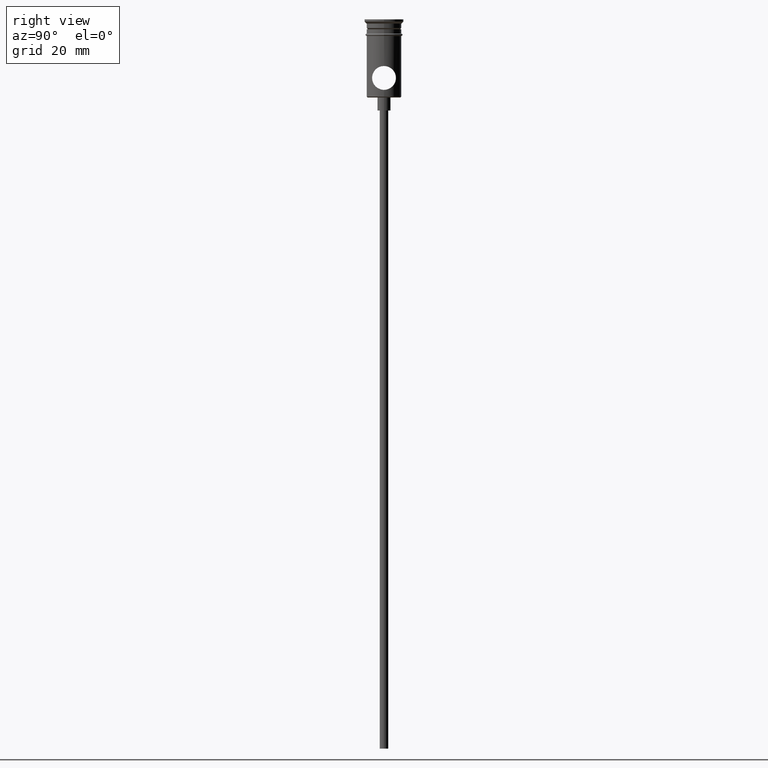
[diagram: clean part render]
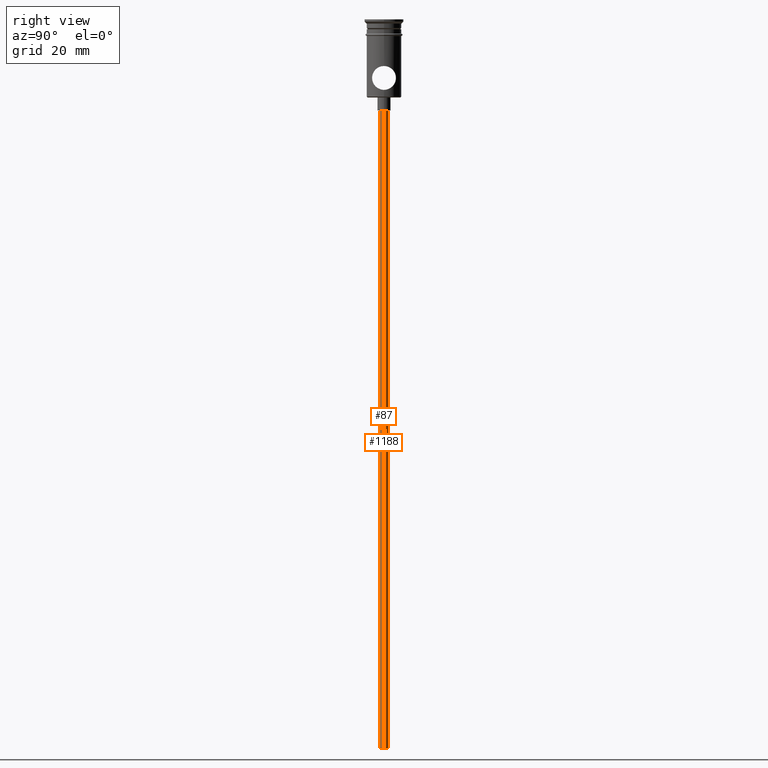
[diagram: same view with one multi-face feature highlighted, each face labeled with its STEP entity id]
A machine part, right view. The highlighted faces form ONE feature: a constant-radius fillet chain: 2 tangent blend faces with common blend radius 1 mm. The faces share edges in the B-rep.
Their STEP definitions:
[1] entity #1188 (Cylinder):
#2 = CARTESIAN_POINT ( 'NONE',  ( -0.9999999999999997780, 1.224646799147352961E-16, -167.9999999999999716 ) ) ;
#18 = VERTEX_POINT ( 'NONE', #507 ) ;
#196 = AXIS2_PLACEMENT_3D ( 'NONE', #1031, #727, #942 ) ;
#204 = DIRECTION ( 'NONE',  ( -0.000000000000000000, -0.000000000000000000, 1.000000000000000000 ) ) ;
#216 = CARTESIAN_POINT ( 'NONE',  ( -0.9999999999999997780, 1.224646799147352961E-16, -167.9999999999999716 ) ) ;
#251 = VERTEX_POINT ( 'NONE', #216 ) ;
#316 = ORIENTED_EDGE ( 'NONE', *, *, #1112, .F. ) ;
#331 = FACE_OUTER_BOUND ( 'NONE', #878, .T. ) ;
#339 = CIRCLE ( 'NONE', #1262, 0.9999999999999997780 ) ;
#402 = VECTOR ( 'NONE', #821, 1000.000000000000000 ) ;
#408 = VERTEX_POINT ( 'NONE', #916 ) ;
#426 = DIRECTION ( 'NONE',  ( 1.000000000000000000, 0.000000000000000000, 0.000000000000000000 ) ) ;
#458 = EDGE_CURVE ( 'NONE', #1152, #408, #339, .T. ) ;
#507 = CARTESIAN_POINT ( 'NONE',  ( 0.9999999999999997780, 0.000000000000000000, -167.9999999999999716 ) ) ;
#587 = CARTESIAN_POINT ( 'NONE',  ( 0.9999999999999997780, 0.000000000000000000, -167.9999999999999716 ) ) ;
#595 = CARTESIAN_POINT ( 'NONE',  ( -0.9999999999999997780, 1.224646799147352961E-16, -20.99999999999999645 ) ) ;
#727 = DIRECTION ( 'NONE',  ( 0.000000000000000000, 0.000000000000000000, -1.000000000000000000 ) ) ;
#791 = EDGE_CURVE ( 'NONE', #251, #1152, #851, .T. ) ;
#821 = DIRECTION ( 'NONE',  ( -0.000000000000000000, -0.000000000000000000, 1.000000000000000000 ) ) ;
#840 = DIRECTION ( 'NONE',  ( -0.000000000000000000, -0.000000000000000000, 1.000000000000000000 ) ) ;
#851 = LINE ( 'NONE', #2, #987 ) ;
#871 = AXIS2_PLACEMENT_3D ( 'NONE', #972, #204, #426 ) ;
#878 = EDGE_LOOP ( 'NONE', ( #970, #1220, #1231, #316 ) ) ;
#913 = CARTESIAN_POINT ( 'NONE',  ( 0.000000000000000000, 0.000000000000000000, -20.99999999999999645 ) ) ;
#916 = CARTESIAN_POINT ( 'NONE',  ( 0.9999999999999997780, 0.000000000000000000, -20.99999999999999645 ) ) ;
#942 = DIRECTION ( 'NONE',  ( -1.000000000000000000, 0.000000000000000000, 0.000000000000000000 ) ) ;
#970 = ORIENTED_EDGE ( 'NONE', *, *, #1073, .F. ) ;
#972 = CARTESIAN_POINT ( 'NONE',  ( 0.000000000000000000, 0.000000000000000000, -167.9999999999999716 ) ) ;
#987 = VECTOR ( 'NONE', #840, 1000.000000000000000 ) ;
#1031 = CARTESIAN_POINT ( 'NONE',  ( 0.000000000000000000, 0.000000000000000000, -167.9999999999999716 ) ) ;
#1073 = EDGE_CURVE ( 'NONE', #251, #18, #1151, .T. ) ;
#1112 = EDGE_CURVE ( 'NONE', #18, #408, #1162, .T. ) ;
#1151 = CIRCLE ( 'NONE', #196, 0.9999999999999997780 ) ;
#1152 = VERTEX_POINT ( 'NONE', #595 ) ;
#1162 = LINE ( 'NONE', #587, #402 ) ;
#1168 = CYLINDRICAL_SURFACE ( 'NONE', #871, 0.9999999999999997780 ) ;
#1188 = ADVANCED_FACE ( 'NONE', ( #331 ), #1168, .T. ) ;
#1216 = DIRECTION ( 'NONE',  ( -1.000000000000000000, 0.000000000000000000, 0.000000000000000000 ) ) ;
#1220 = ORIENTED_EDGE ( 'NONE', *, *, #791, .T. ) ;
#1231 = ORIENTED_EDGE ( 'NONE', *, *, #458, .T. ) ;
#1262 = AXIS2_PLACEMENT_3D ( 'NONE', #913, #1358, #1216 ) ;
#1358 = DIRECTION ( 'NONE',  ( 0.000000000000000000, 0.000000000000000000, -1.000000000000000000 ) ) ;
[2] entity #87 (Cylinder):
#2 = CARTESIAN_POINT ( 'NONE',  ( -0.9999999999999997780, 1.224646799147352961E-16, -167.9999999999999716 ) ) ;
#18 = VERTEX_POINT ( 'NONE', #507 ) ;
#82 = ORIENTED_EDGE ( 'NONE', *, *, #791, .F. ) ;
#87 = ADVANCED_FACE ( 'NONE', ( #581 ), #914, .T. ) ;
#125 = CIRCLE ( 'NONE', #312, 0.9999999999999997780 ) ;
#216 = CARTESIAN_POINT ( 'NONE',  ( -0.9999999999999997780, 1.224646799147352961E-16, -167.9999999999999716 ) ) ;
#225 = DIRECTION ( 'NONE',  ( 0.000000000000000000, 0.000000000000000000, -1.000000000000000000 ) ) ;
#251 = VERTEX_POINT ( 'NONE', #216 ) ;
#312 = AXIS2_PLACEMENT_3D ( 'NONE', #978, #225, #1108 ) ;
#340 = ORIENTED_EDGE ( 'NONE', *, *, #1213, .T. ) ;
#402 = VECTOR ( 'NONE', #821, 1000.000000000000000 ) ;
#408 = VERTEX_POINT ( 'NONE', #916 ) ;
#507 = CARTESIAN_POINT ( 'NONE',  ( 0.9999999999999997780, 0.000000000000000000, -167.9999999999999716 ) ) ;
#521 = CARTESIAN_POINT ( 'NONE',  ( 0.000000000000000000, 0.000000000000000000, -20.99999999999999645 ) ) ;
#581 = FACE_OUTER_BOUND ( 'NONE', #700, .T. ) ;
#587 = CARTESIAN_POINT ( 'NONE',  ( 0.9999999999999997780, 0.000000000000000000, -167.9999999999999716 ) ) ;
#595 = CARTESIAN_POINT ( 'NONE',  ( -0.9999999999999997780, 1.224646799147352961E-16, -20.99999999999999645 ) ) ;
#691 = CIRCLE ( 'NONE', #896, 0.9999999999999997780 ) ;
#695 = ORIENTED_EDGE ( 'NONE', *, *, #1112, .T. ) ;
#699 = DIRECTION ( 'NONE',  ( -0.000000000000000000, -0.000000000000000000, 1.000000000000000000 ) ) ;
#700 = EDGE_LOOP ( 'NONE', ( #82, #1218, #695, #340 ) ) ;
#791 = EDGE_CURVE ( 'NONE', #251, #1152, #851, .T. ) ;
#807 = CARTESIAN_POINT ( 'NONE',  ( 0.000000000000000000, 0.000000000000000000, -167.9999999999999716 ) ) ;
#821 = DIRECTION ( 'NONE',  ( -0.000000000000000000, -0.000000000000000000, 1.000000000000000000 ) ) ;
#840 = DIRECTION ( 'NONE',  ( -0.000000000000000000, -0.000000000000000000, 1.000000000000000000 ) ) ;
#850 = DIRECTION ( 'NONE',  ( 0.000000000000000000, 0.000000000000000000, -1.000000000000000000 ) ) ;
#851 = LINE ( 'NONE', #2, #987 ) ;
#896 = AXIS2_PLACEMENT_3D ( 'NONE', #521, #850, #1413 ) ;
#914 = CYLINDRICAL_SURFACE ( 'NONE', #925, 0.9999999999999997780 ) ;
#916 = CARTESIAN_POINT ( 'NONE',  ( 0.9999999999999997780, 0.000000000000000000, -20.99999999999999645 ) ) ;
#925 = AXIS2_PLACEMENT_3D ( 'NONE', #807, #699, #1138 ) ;
#978 = CARTESIAN_POINT ( 'NONE',  ( 0.000000000000000000, 0.000000000000000000, -167.9999999999999716 ) ) ;
#987 = VECTOR ( 'NONE', #840, 1000.000000000000000 ) ;
#1108 = DIRECTION ( 'NONE',  ( -1.000000000000000000, 0.000000000000000000, 0.000000000000000000 ) ) ;
#1112 = EDGE_CURVE ( 'NONE', #18, #408, #1162, .T. ) ;
#1138 = DIRECTION ( 'NONE',  ( 1.000000000000000000, 0.000000000000000000, 0.000000000000000000 ) ) ;
#1152 = VERTEX_POINT ( 'NONE', #595 ) ;
#1162 = LINE ( 'NONE', #587, #402 ) ;
#1213 = EDGE_CURVE ( 'NONE', #408, #1152, #691, .T. ) ;
#1218 = ORIENTED_EDGE ( 'NONE', *, *, #1347, .F. ) ;
#1347 = EDGE_CURVE ( 'NONE', #18, #251, #125, .T. ) ;
#1413 = DIRECTION ( 'NONE',  ( -1.000000000000000000, 0.000000000000000000, 0.000000000000000000 ) ) ;